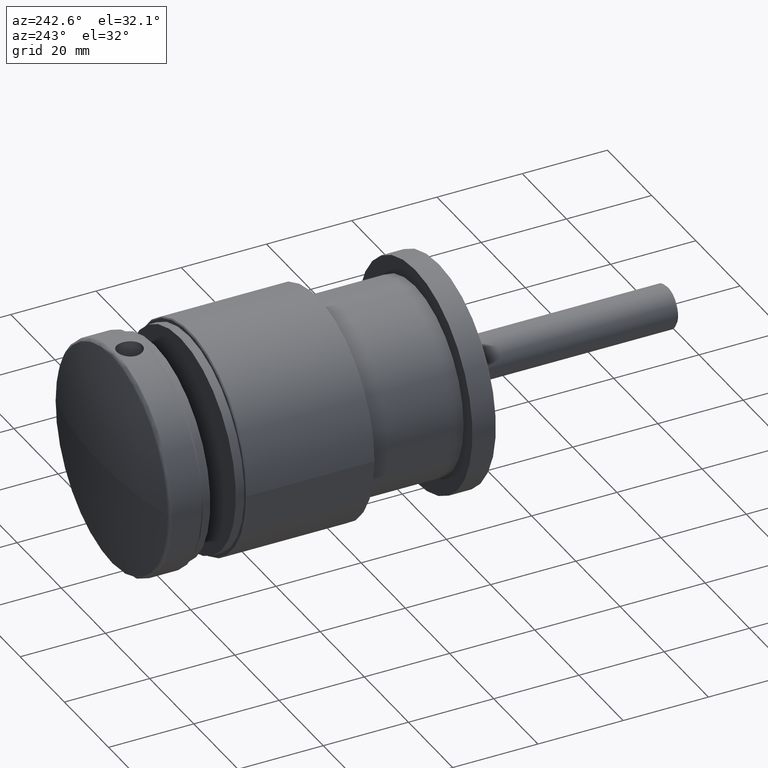
[diagram: clean part render]
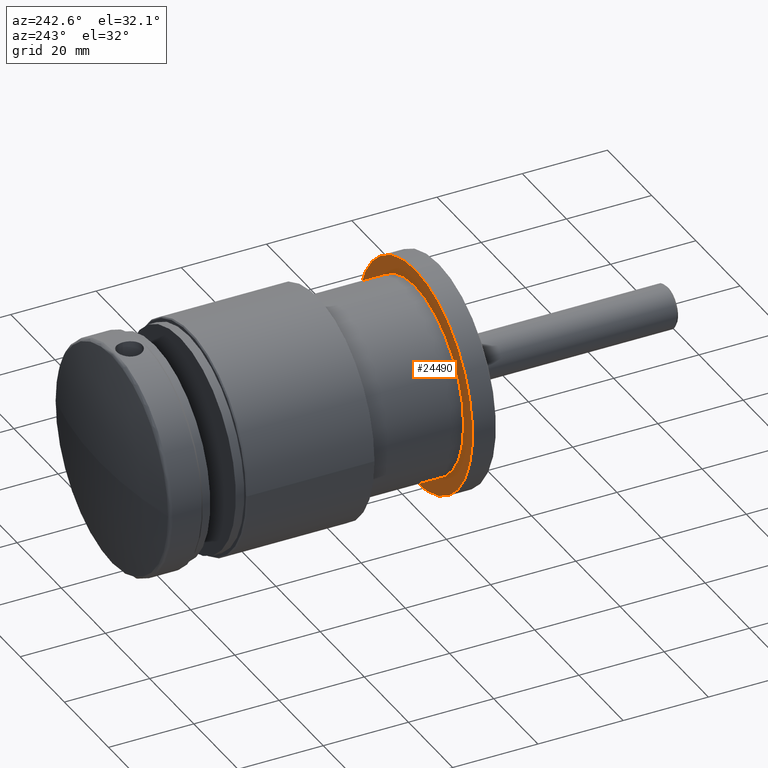
[diagram: same view with one face highlighted and labeled with its STEP entity id]
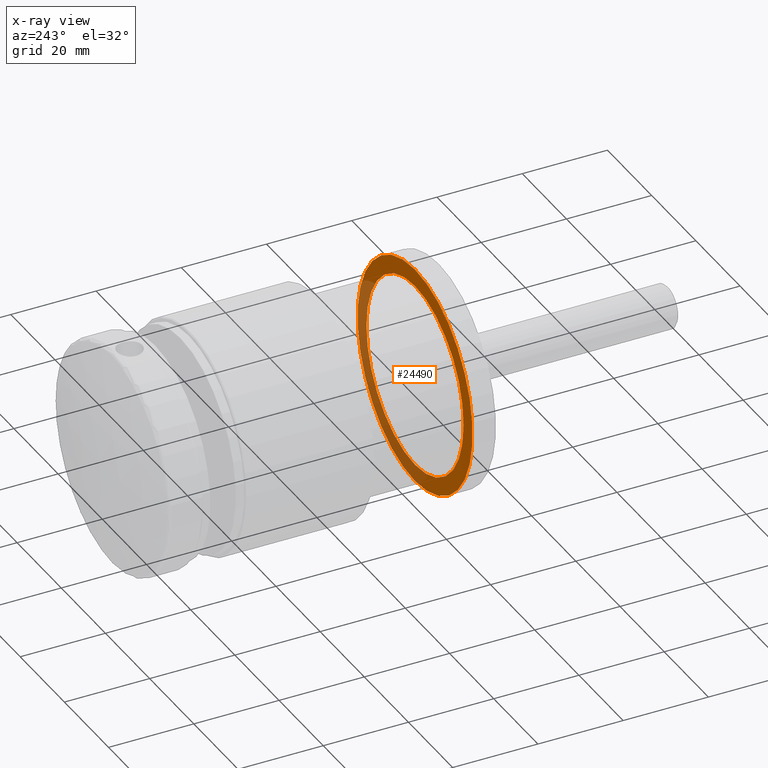
[diagram: x-ray of the same camera — body ghosted, the highlighted face saturated]
A machine part, auxiliary view. The second image highlights one B-rep face of the part: STEP entity #24490.
The next image is the same camera in x-ray: the body ghosted, the highlighted face saturated — about 36% of this face is hidden behind the body in this view.
In plain terms, the highlighted planar face has unit normal (0, 1, 0).
Its self-contained STEP definition (entity closure, byte-faithful):
#429 = CIRCLE ( 'NONE', #28581, 22.00000000000018474 ) ;
#483 = DIRECTION ( 'NONE',  ( 0.000000000000000000, 0.000000000000000000, -1.000000000000000000 ) ) ;
#1734 = DIRECTION ( 'NONE',  ( -2.630770061871633432E-48, -1.000000000000000000, 6.842277657836020854E-48 ) ) ;
#2080 = DIRECTION ( 'NONE',  ( 0.000000000000000000, 0.000000000000000000, -1.000000000000000000 ) ) ;
#3113 = AXIS2_PLACEMENT_3D ( 'NONE', #3599, #8634, #6340 ) ;
#3599 = CARTESIAN_POINT ( 'NONE',  ( 22.00000000000013145, 24.39999999999999858, 7.660676766369744205E-33 ) ) ;
#3761 = EDGE_CURVE ( 'NONE', #23875, #24777, #22809, .T. ) ;
#4457 = DIRECTION ( 'NONE',  ( 0.000000000000000000, 0.000000000000000000, -1.000000000000000000 ) ) ;
#5602 = ORIENTED_EDGE ( 'NONE', *, *, #15006, .F. ) ;
#6340 = DIRECTION ( 'NONE',  ( 0.000000000000000000, 6.842277657835960082E-48, -1.000000000000000000 ) ) ;
#8634 = DIRECTION ( 'NONE',  ( -2.630770061871633432E-48, -1.000000000000000000, -6.842277657835960082E-48 ) ) ;
#9384 = FACE_OUTER_BOUND ( 'NONE', #28040, .T. ) ;
#10456 = EDGE_CURVE ( 'NONE', #11245, #30828, #27890, .T. ) ;
#10775 = CARTESIAN_POINT ( 'NONE',  ( 2.694222958124176415E-15, 24.39999999999999858, 21.99999999999999289 ) ) ;
#11245 = VERTEX_POINT ( 'NONE', #30831 ) ;
#13109 = CARTESIAN_POINT ( 'NONE',  ( 0.000000000000000000, 24.39999999999999858, 8.552847072295026068E-46 ) ) ;
#13217 = DIRECTION ( 'NONE',  ( -2.630770061871633432E-48, -1.000000000000000000, 6.842277657836020854E-48 ) ) ;
#13824 = AXIS2_PLACEMENT_3D ( 'NONE', #14468, #1734, #4457 ) ;
#13889 = CARTESIAN_POINT ( 'NONE',  ( 0.000000000000000000, 24.39999999999999858, -22.00000000000018474 ) ) ;
#13963 = PLANE ( 'NONE',  #3113 ) ;
#14468 = CARTESIAN_POINT ( 'NONE',  ( 0.000000000000000000, 24.39999999999999858, 8.552847072295026068E-46 ) ) ;
#14652 = CARTESIAN_POINT ( 'NONE',  ( 0.000000000000000000, 24.39999999999999858, 8.552847072295026068E-46 ) ) ;
#15006 = EDGE_CURVE ( 'NONE', #24777, #23875, #429, .T. ) ;
#19593 = ORIENTED_EDGE ( 'NONE', *, *, #25021, .T. ) ;
#19790 = DIRECTION ( 'NONE',  ( -2.630770061871633432E-48, -1.000000000000000000, 6.842277657836020854E-48 ) ) ;
#20213 = DIRECTION ( 'NONE',  ( -2.630770061871633432E-48, -1.000000000000000000, 6.842277657836020854E-48 ) ) ;
#21674 = AXIS2_PLACEMENT_3D ( 'NONE', #22842, #20213, #2080 ) ;
#22809 = CIRCLE ( 'NONE', #21674, 22.00000000000018474 ) ;
#22836 = CIRCLE ( 'NONE', #13824, 26.00000000000022027 ) ;
#22842 = CARTESIAN_POINT ( 'NONE',  ( 0.000000000000000000, 24.39999999999999858, 8.552847072295026068E-46 ) ) ;
#23875 = VERTEX_POINT ( 'NONE', #13889 ) ;
#24490 = ADVANCED_FACE ( 'NONE', ( #9384, #33040 ), #13963, .T. ) ;
#24562 = AXIS2_PLACEMENT_3D ( 'NONE', #13109, #13217, #483 ) ;
#24777 = VERTEX_POINT ( 'NONE', #10775 ) ;
#25021 = EDGE_CURVE ( 'NONE', #30828, #11245, #22836, .T. ) ;
#25847 = ORIENTED_EDGE ( 'NONE', *, *, #3761, .F. ) ;
#27158 = ORIENTED_EDGE ( 'NONE', *, *, #10456, .T. ) ;
#27890 = CIRCLE ( 'NONE', #24562, 26.00000000000022027 ) ;
#28040 = EDGE_LOOP ( 'NONE', ( #27158, #19593 ) ) ;
#28581 = AXIS2_PLACEMENT_3D ( 'NONE', #14652, #19790, #32919 ) ;
#30828 = VERTEX_POINT ( 'NONE', #32159 ) ;
#30831 = CARTESIAN_POINT ( 'NONE',  ( 0.000000000000000000, 24.39999999999999858, -26.00000000000022027 ) ) ;
#32159 = CARTESIAN_POINT ( 'NONE',  ( 3.184081677783116613E-15, 24.39999999999999858, 25.99999999999998934 ) ) ;
#32341 = EDGE_LOOP ( 'NONE', ( #25847, #5602 ) ) ;
#32919 = DIRECTION ( 'NONE',  ( 0.000000000000000000, 0.000000000000000000, -1.000000000000000000 ) ) ;
#33040 = FACE_BOUND ( 'NONE', #32341, .T. ) ;